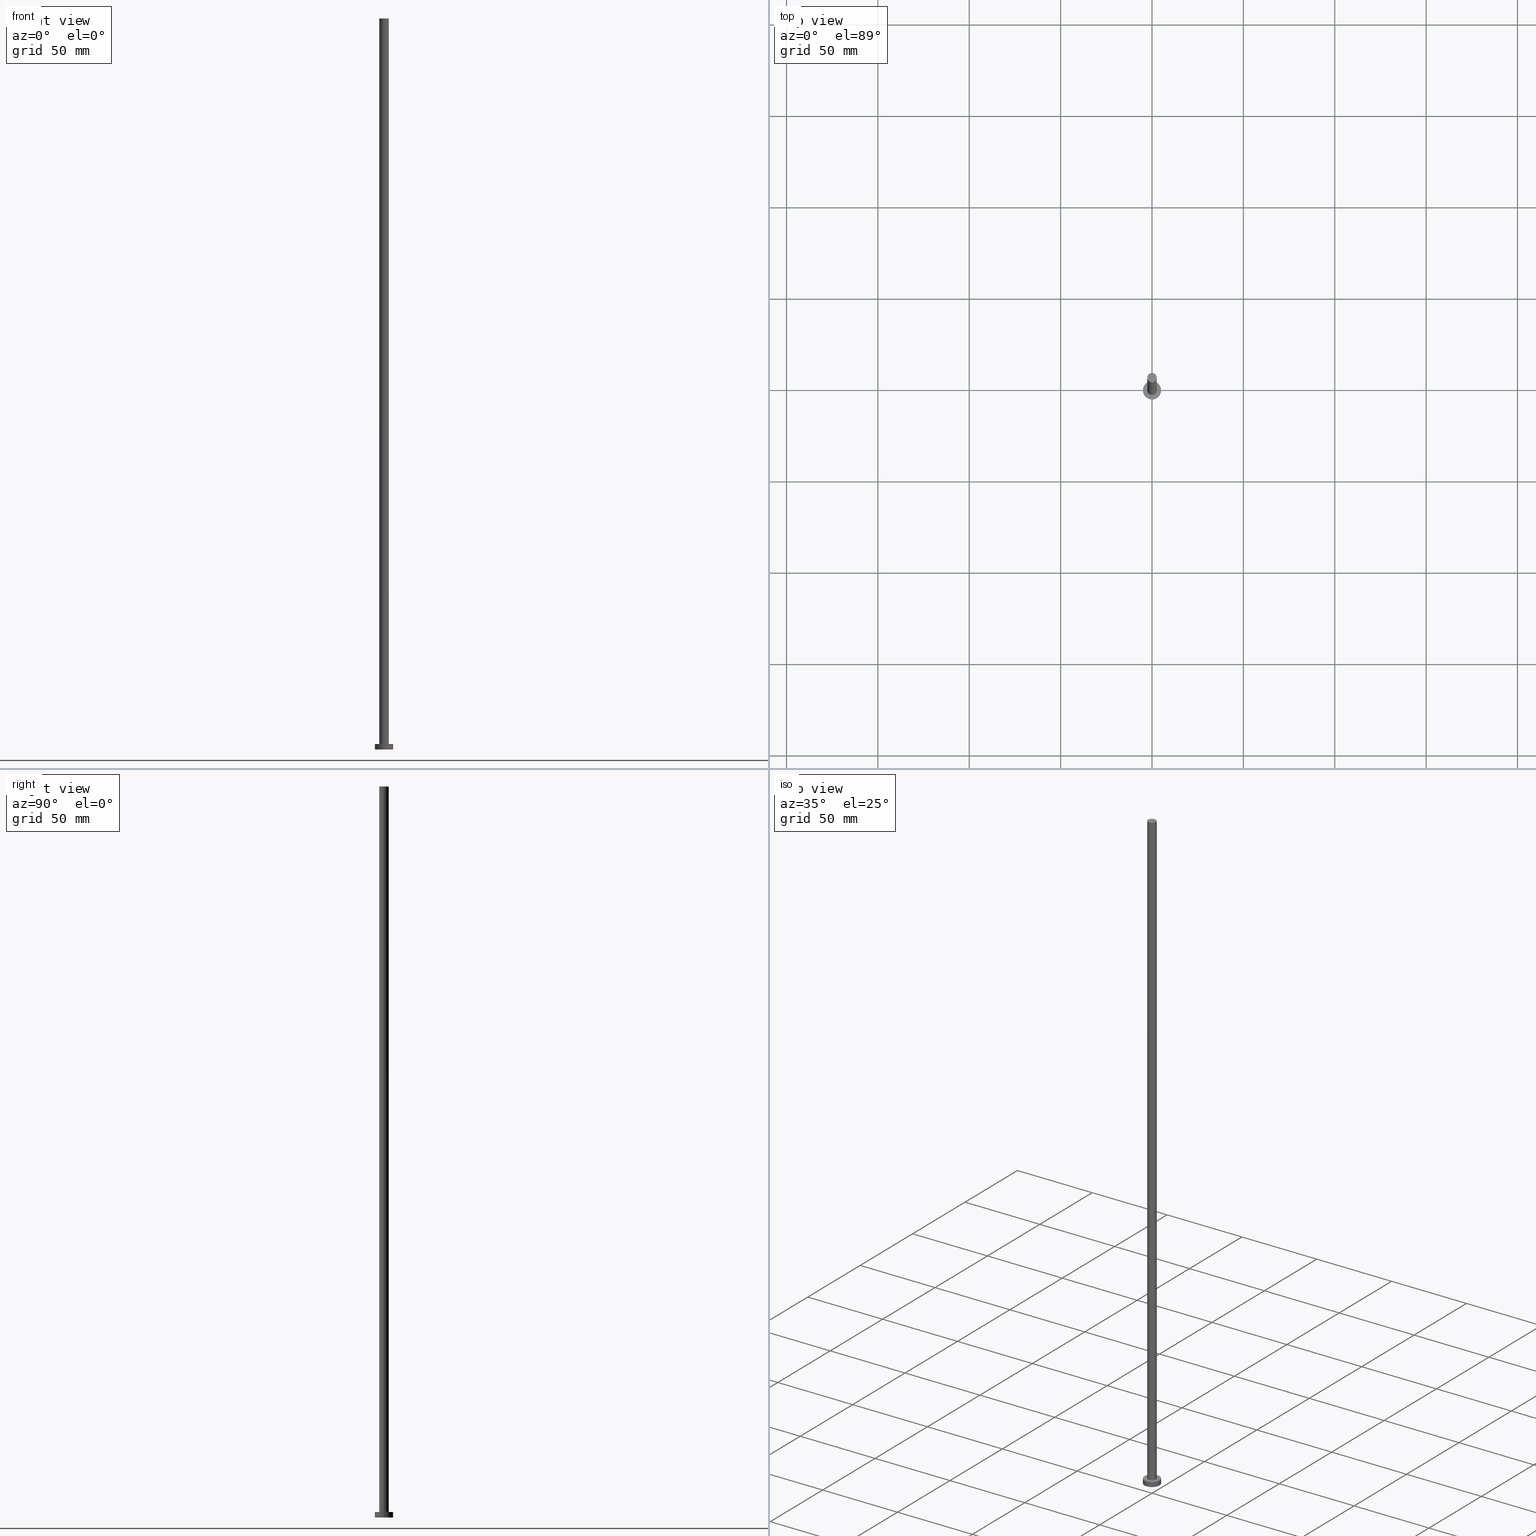
[diagram: canonical four-view strip — front | top / right | iso, engineering-drawing reading convention]
A machine part, canonical four-view strip (front | top / right | iso — engineering-drawing reading convention). The complete STEP part file that produces these views, byte-faithful:
ISO-10303-21;
HEADER;
FILE_DESCRIPTION (( 'STEP AP203' ),
    '1' );
FILE_NAME ('946b.STEP',
    '2023-02-12T12:27:07',
    ( '' ),
    ( '' ),
    'SwSTEP 2.0',
    'SolidWorks 2019',
    '' );
FILE_SCHEMA (( 'CONFIG_CONTROL_DESIGN' ));
ENDSEC;

DATA;
#1 = EDGE_CURVE ( 'NONE', #85, #174, #166, .T. ) ;
#2 = VECTOR ( 'NONE', #37, 1000.000000000000000 ) ;
#3 = CC_DESIGN_APPROVAL ( #71, ( #159 ) ) ;
#4 = LINE ( 'NONE', #101, #2 ) ;
#5 = APPLICATION_PROTOCOL_DEFINITION ( 'international standard', 'config_control_design', 1994, #152 ) ;
#6 = UNCERTAINTY_MEASURE_WITH_UNIT (LENGTH_MEASURE( 1.000000000000000082E-05 ), #123, 'distance_accuracy_value', 'NONE');
#7 = ORIENTED_EDGE ( 'NONE', *, *, #202, .T. ) ;
#8 = DIRECTION ( 'NONE',  ( 1.000000000000000000, 0.000000000000000000, 0.000000000000000000 ) ) ;
#9 = DIRECTION ( 'NONE',  ( -0.000000000000000000, -0.000000000000000000, -1.000000000000000000 ) ) ;
#10 = CARTESIAN_POINT ( 'NONE',  ( 0.000000000000000000, 0.000000000000000000, 400.0000000000000000 ) ) ;
#11 = EDGE_LOOP ( 'NONE', ( #178, #29, #246, #221 ) ) ;
#12 = PLANE ( 'NONE',  #19 ) ;
#13 = CARTESIAN_POINT ( 'NONE',  ( -2.600000000000000089, 0.000000000000000000, 400.0000000000000000 ) ) ;
#14 = FACE_OUTER_BOUND ( 'NONE', #209, .T. ) ;
#15 = LOCAL_TIME ( 13, 27, 7.000000000000000000, #203 ) ;
#16 = LOCAL_TIME ( 13, 27, 7.000000000000000000, #26 ) ;
#17 = CYLINDRICAL_SURFACE ( 'NONE', #238, 5.000000000000000000 ) ;
#18 = AXIS2_PLACEMENT_3D ( 'NONE', #237, #126, #216 ) ;
#19 = AXIS2_PLACEMENT_3D ( 'NONE', #148, #232, #70 ) ;
#20 =( NAMED_UNIT ( * ) PLANE_ANGLE_UNIT ( ) SI_UNIT ( $, .RADIAN. ) );
#21 = ORIENTED_EDGE ( 'NONE', *, *, #226, .F. ) ;
#22 = DATE_AND_TIME ( #32, #78 ) ;
#23 = DIRECTION ( 'NONE',  ( 0.000000000000000000, 0.000000000000000000, 1.000000000000000000 ) ) ;
#24 = VERTEX_POINT ( 'NONE', #255 ) ;
#25 = CARTESIAN_POINT ( 'NONE',  ( 0.000000000000000000, 0.000000000000000000, 400.0000000000000000 ) ) ;
#26 = COORDINATED_UNIVERSAL_TIME_OFFSET ( 1, 0, .AHEAD. ) ;
#27 = PLANE ( 'NONE',  #18 ) ;
#28 = AXIS2_PLACEMENT_3D ( 'NONE', #229, #250, #30 ) ;
#29 = ORIENTED_EDGE ( 'NONE', *, *, #253, .F. ) ;
#30 = DIRECTION ( 'NONE',  ( 1.000000000000000000, 0.000000000000000000, 0.000000000000000000 ) ) ;
#31 = EDGE_LOOP ( 'NONE', ( #211, #49, #245, #68 ) ) ;
#32 = CALENDAR_DATE ( 2023, 12, 2 ) ;
#33 = DIRECTION ( 'NONE',  ( -0.000000000000000000, -0.000000000000000000, -1.000000000000000000 ) ) ;
#34 = CC_DESIGN_DATE_AND_TIME_ASSIGNMENT ( #165, #145, ( #147 ) ) ;
#35 = ADVANCED_FACE ( 'NONE', ( #113, #67 ), #12, .T. ) ;
#36 = MECHANICAL_CONTEXT ( 'NONE', #91, 'mechanical' ) ;
#37 = DIRECTION ( 'NONE',  ( -0.000000000000000000, -0.000000000000000000, -1.000000000000000000 ) ) ;
#38 = CLOSED_SHELL ( 'NONE', ( #109, #181, #204, #35, #90, #58, #160 ) ) ;
#39 = APPROVAL_ROLE ( '' ) ;
#40 = EDGE_CURVE ( 'NONE', #122, #108, #146, .T. ) ;
#41 = VECTOR ( 'NONE', #247, 1000.000000000000000 ) ;
#42 = APPROVAL_DATE_TIME ( #134, #71 ) ;
#43 = CARTESIAN_POINT ( 'NONE',  ( 0.000000000000000000, 0.000000000000000000, 3.000000000000000000 ) ) ;
#44 = DIRECTION ( 'NONE',  ( 0.000000000000000000, 0.000000000000000000, 1.000000000000000000 ) ) ;
#45 = DIRECTION ( 'NONE',  ( 1.000000000000000000, 0.000000000000000000, 0.000000000000000000 ) ) ;
#46 = ORIENTED_EDGE ( 'NONE', *, *, #158, .F. ) ;
#47 = DIRECTION ( 'NONE',  ( 0.000000000000000000, 0.000000000000000000, 1.000000000000000000 ) ) ;
#48 = PRODUCT_DEFINITION_FORMATION_WITH_SPECIFIED_SOURCE ( 'LIBOVOLN�', '', #96, .NOT_KNOWN. ) ;
#49 = ORIENTED_EDGE ( 'NONE', *, *, #103, .T. ) ;
#50 = FACE_OUTER_BOUND ( 'NONE', #228, .T. ) ;
#51 = APPROVAL ( #59, 'NEUR�EN�' ) ;
#52 = EDGE_CURVE ( 'NONE', #127, #112, #116, .T. ) ;
#53 = CIRCLE ( 'NONE', #137, 2.600000000000000089 ) ;
#54 = PERSON_AND_ORGANIZATION ( #206, #218 ) ;
#55 = AXIS2_PLACEMENT_3D ( 'NONE', #207, #73, #76 ) ;
#56 = PRODUCT_DEFINITION_SHAPE ( 'NONE', 'NONE',  #147 ) ;
#57 = CALENDAR_DATE ( 2023, 12, 2 ) ;
#58 = ADVANCED_FACE ( 'NONE', ( #135 ), #157, .T. ) ;
#59 = APPROVAL_STATUS ( 'not_yet_approved' ) ;
#60 = ORIENTED_EDGE ( 'NONE', *, *, #1, .F. ) ;
#61 = CIRCLE ( 'NONE', #28, 5.000000000000000000 ) ;
#62 = DATE_TIME_ROLE ( 'classification_date' ) ;
#63 = CARTESIAN_POINT ( 'NONE',  ( -2.600000000000000089, 0.000000000000000000, 3.000000000000000000 ) ) ;
#64 = ORIENTED_EDGE ( 'NONE', *, *, #1, .T. ) ;
#65 = PERSON_AND_ORGANIZATION ( #206, #218 ) ;
#66 = DIRECTION ( 'NONE',  ( 1.000000000000000000, 0.000000000000000000, 0.000000000000000000 ) ) ;
#67 = FACE_OUTER_BOUND ( 'NONE', #133, .T. ) ;
#68 = ORIENTED_EDGE ( 'NONE', *, *, #198, .F. ) ;
#69 = SECURITY_CLASSIFICATION_LEVEL ( 'unclassified' ) ;
#70 = DIRECTION ( 'NONE',  ( 1.000000000000000000, 0.000000000000000000, -0.000000000000000000 ) ) ;
#71 = APPROVAL ( #187, 'NEUR�EN�' ) ;
#72 = CARTESIAN_POINT ( 'NONE',  ( -5.000000000000000000, 0.000000000000000000, 3.000000000000000000 ) ) ;
#73 = DIRECTION ( 'NONE',  ( 0.000000000000000000, 0.000000000000000000, 1.000000000000000000 ) ) ;
#74 = CC_DESIGN_PERSON_AND_ORGANIZATION_ASSIGNMENT ( #121, #117, ( #147 ) ) ;
#75 =( NAMED_UNIT ( * ) SI_UNIT ( $, .STERADIAN. ) SOLID_ANGLE_UNIT ( ) );
#76 = DIRECTION ( 'NONE',  ( 1.000000000000000000, 0.000000000000000000, 0.000000000000000000 ) ) ;
#77 = DATE_AND_TIME ( #183, #15 ) ;
#78 = LOCAL_TIME ( 13, 27, 7.000000000000000000, #99 ) ;
#79 = APPROVAL_ROLE ( '' ) ;
#80 = ORIENTED_EDGE ( 'NONE', *, *, #158, .T. ) ;
#81 = DIRECTION ( 'NONE',  ( -0.000000000000000000, -0.000000000000000000, -1.000000000000000000 ) ) ;
#82 = ORIENTED_EDGE ( 'NONE', *, *, #40, .F. ) ;
#83 = CARTESIAN_POINT ( 'NONE',  ( 5.000000000000000000, 6.123233995736766282E-16, 0.000000000000000000 ) ) ;
#84 = DIRECTION ( 'NONE',  ( 1.000000000000000000, 0.000000000000000000, 0.000000000000000000 ) ) ;
#85 = VERTEX_POINT ( 'NONE', #222 ) ;
#86 = FACE_OUTER_BOUND ( 'NONE', #31, .T. ) ;
#87 = CARTESIAN_POINT ( 'NONE',  ( 0.000000000000000000, 0.000000000000000000, 400.0000000000000000 ) ) ;
#88 = APPROVAL_PERSON_ORGANIZATION ( #54, #51, #39 ) ;
#89 = DIRECTION ( 'NONE',  ( 1.000000000000000000, 0.000000000000000000, 0.000000000000000000 ) ) ;
#90 = ADVANCED_FACE ( 'NONE', ( #14 ), #27, .F. ) ;
#91 = APPLICATION_CONTEXT ( 'configuration controlled 3d designs of mechanical parts and assemblies' ) ;
#92 = CIRCLE ( 'NONE', #118, 2.600000000000000089 ) ;
#93 = CARTESIAN_POINT ( 'NONE',  ( 2.600000000000000089, 3.184081677783118191E-16, 400.0000000000000000 ) ) ;
#94 = DESIGN_CONTEXT ( 'detailed design', #152, 'design' ) ;
#95 = CC_DESIGN_DATE_AND_TIME_ASSIGNMENT ( #22, #62, ( #159 ) ) ;
#96 = PRODUCT ( '946b', '946b', '', ( #36 ) ) ;
#97 = VECTOR ( 'NONE', #81, 1000.000000000000000 ) ;
#98 = EDGE_LOOP ( 'NONE', ( #254, #191, #104, #156 ) ) ;
#99 = COORDINATED_UNIVERSAL_TIME_OFFSET ( 1, 0, .AHEAD. ) ;
#100 = DIRECTION ( 'NONE',  ( -1.000000000000000000, 0.000000000000000000, 0.000000000000000000 ) ) ;
#101 = CARTESIAN_POINT ( 'NONE',  ( -2.600000000000000089, 0.000000000000000000, 400.0000000000000000 ) ) ;
#102 = CARTESIAN_POINT ( 'NONE',  ( 0.000000000000000000, 0.000000000000000000, 3.000000000000000000 ) ) ;
#103 = EDGE_CURVE ( 'NONE', #186, #127, #252, .T. ) ;
#104 = ORIENTED_EDGE ( 'NONE', *, *, #198, .T. ) ;
#105 = LINE ( 'NONE', #93, #130 ) ;
#106 = AXIS2_PLACEMENT_3D ( 'NONE', #173, #47, #84 ) ;
#107 = DIRECTION ( 'NONE',  ( 0.000000000000000000, 0.000000000000000000, 1.000000000000000000 ) ) ;
#108 = VERTEX_POINT ( 'NONE', #155 ) ;
#109 = ADVANCED_FACE ( 'NONE', ( #50 ), #190, .T. ) ;
#110 = ADVANCED_BREP_SHAPE_REPRESENTATION ( '946b', ( #233, #55 ), #192 ) ;
#111 = PLANE ( 'NONE',  #242 ) ;
#112 = VERTEX_POINT ( 'NONE', #235 ) ;
#113 = FACE_BOUND ( 'NONE', #230, .T. ) ;
#114 = AXIS2_PLACEMENT_3D ( 'NONE', #179, #196, #193 ) ;
#115 = LOCAL_TIME ( 13, 27, 7.000000000000000000, #240 ) ;
#116 = CIRCLE ( 'NONE', #106, 5.000000000000000000 ) ;
#117 = PERSON_AND_ORGANIZATION_ROLE ( 'creator' ) ;
#118 = AXIS2_PLACEMENT_3D ( 'NONE', #25, #44, #89 ) ;
#119 = PERSON_AND_ORGANIZATION ( #206, #218 ) ;
#120 = DATE_AND_TIME ( #57, #219 ) ;
#121 = PERSON_AND_ORGANIZATION ( #206, #218 ) ;
#122 = VERTEX_POINT ( 'NONE', #63 ) ;
#123 =( LENGTH_UNIT ( ) NAMED_UNIT ( * ) SI_UNIT ( .MILLI., .METRE. ) );
#124 = CC_DESIGN_PERSON_AND_ORGANIZATION_ASSIGNMENT ( #119, #225, ( #96 ) ) ;
#125 = FACE_OUTER_BOUND ( 'NONE', #214, .T. ) ;
#126 = DIRECTION ( 'NONE',  ( 0.000000000000000000, 0.000000000000000000, 1.000000000000000000 ) ) ;
#127 = VERTEX_POINT ( 'NONE', #83 ) ;
#128 = EDGE_CURVE ( 'NONE', #112, #127, #61, .T. ) ;
#129 = LINE ( 'NONE', #72, #41 ) ;
#130 = VECTOR ( 'NONE', #234, 1000.000000000000000 ) ;
#131 = DIRECTION ( 'NONE',  ( 0.000000000000000000, 0.000000000000000000, 1.000000000000000000 ) ) ;
#132 = CC_DESIGN_PERSON_AND_ORGANIZATION_ASSIGNMENT ( #65, #210, ( #159 ) ) ;
#133 = EDGE_LOOP ( 'NONE', ( #7, #195 ) ) ;
#134 = DATE_AND_TIME ( #236, #16 ) ;
#135 = FACE_OUTER_BOUND ( 'NONE', #11, .T. ) ;
#136 = AXIS2_PLACEMENT_3D ( 'NONE', #153, #140, #182 ) ;
#137 = AXIS2_PLACEMENT_3D ( 'NONE', #43, #220, #66 ) ;
#138 = APPROVAL_PERSON_ORGANIZATION ( #248, #71, #251 ) ;
#139 = CC_DESIGN_PERSON_AND_ORGANIZATION_ASSIGNMENT ( #244, #172, ( #48 ) ) ;
#140 = DIRECTION ( 'NONE',  ( -0.000000000000000000, -0.000000000000000000, -1.000000000000000000 ) ) ;
#141 = COORDINATED_UNIVERSAL_TIME_OFFSET ( 1, 0, .AHEAD. ) ;
#142 = APPROVAL_DATE_TIME ( #77, #51 ) ;
#143 = CC_DESIGN_APPROVAL ( #51, ( #147 ) ) ;
#144 = PERSON_AND_ORGANIZATION_ROLE ( 'creator' ) ;
#145 = DATE_TIME_ROLE ( 'creation_date' ) ;
#146 = CIRCLE ( 'NONE', #114, 2.600000000000000089 ) ;
#147 = PRODUCT_DEFINITION ( 'NEZN�M�', '', #48, #94 ) ;
#148 = CARTESIAN_POINT ( 'NONE',  ( 0.000000000000000000, 0.000000000000000000, 3.000000000000000000 ) ) ;
#149 = ORIENTED_EDGE ( 'NONE', *, *, #184, .T. ) ;
#150 = DIRECTION ( 'NONE',  ( -1.000000000000000000, 0.000000000000000000, 0.000000000000000000 ) ) ;
#151 = DIRECTION ( 'NONE',  ( 1.000000000000000000, 0.000000000000000000, -0.000000000000000000 ) ) ;
#152 = APPLICATION_CONTEXT ( 'configuration controlled 3d designs of mechanical parts and assemblies' ) ;
#153 = CARTESIAN_POINT ( 'NONE',  ( 0.000000000000000000, 0.000000000000000000, 3.000000000000000000 ) ) ;
#154 = APPROVAL ( #168, 'NEUR�EN�' ) ;
#155 = CARTESIAN_POINT ( 'NONE',  ( 2.600000000000000089, 3.184081677783118191E-16, 3.000000000000000000 ) ) ;
#156 = ORIENTED_EDGE ( 'NONE', *, *, #128, .T. ) ;
#157 = CYLINDRICAL_SURFACE ( 'NONE', #185, 2.600000000000000089 ) ;
#158 = EDGE_CURVE ( 'NONE', #108, #122, #53, .T. ) ;
#159 = SECURITY_CLASSIFICATION ( '', '', #69 ) ;
#160 = ADVANCED_FACE ( 'NONE', ( #125 ), #111, .T. ) ;
#161 = CC_DESIGN_PERSON_AND_ORGANIZATION_ASSIGNMENT ( #205, #144, ( #48 ) ) ;
#162 = AXIS2_PLACEMENT_3D ( 'NONE', #102, #131, #45 ) ;
#163 = CC_DESIGN_SECURITY_CLASSIFICATION ( #159, ( #48 ) ) ;
#164 = FACE_OUTER_BOUND ( 'NONE', #98, .T. ) ;
#165 = DATE_AND_TIME ( #167, #115 ) ;
#166 = CIRCLE ( 'NONE', #199, 2.600000000000000089 ) ;
#167 = CALENDAR_DATE ( 2023, 12, 2 ) ;
#168 = APPROVAL_STATUS ( 'not_yet_approved' ) ;
#169 = EDGE_CURVE ( 'NONE', #186, #24, #176, .T. ) ;
#170 = ORIENTED_EDGE ( 'NONE', *, *, #253, .T. ) ;
#171 = ORIENTED_EDGE ( 'NONE', *, *, #52, .F. ) ;
#172 = PERSON_AND_ORGANIZATION_ROLE ( 'design_supplier' ) ;
#173 = CARTESIAN_POINT ( 'NONE',  ( 0.000000000000000000, 0.000000000000000000, 0.000000000000000000 ) ) ;
#174 = VERTEX_POINT ( 'NONE', #13 ) ;
#175 = CARTESIAN_POINT ( 'NONE',  ( 0.000000000000000000, 0.000000000000000000, 3.000000000000000000 ) ) ;
#176 = CIRCLE ( 'NONE', #162, 5.000000000000000000 ) ;
#177 = CARTESIAN_POINT ( 'NONE',  ( 0.000000000000000000, 0.000000000000000000, 400.0000000000000000 ) ) ;
#178 = ORIENTED_EDGE ( 'NONE', *, *, #184, .F. ) ;
#179 = CARTESIAN_POINT ( 'NONE',  ( 0.000000000000000000, 0.000000000000000000, 3.000000000000000000 ) ) ;
#180 = AXIS2_PLACEMENT_3D ( 'NONE', #177, #9, #249 ) ;
#181 = ADVANCED_FACE ( 'NONE', ( #86 ), #201, .T. ) ;
#182 = DIRECTION ( 'NONE',  ( -1.000000000000000000, 0.000000000000000000, 0.000000000000000000 ) ) ;
#183 = CALENDAR_DATE ( 2023, 12, 2 ) ;
#184 = EDGE_CURVE ( 'NONE', #85, #108, #105, .T. ) ;
#185 = AXIS2_PLACEMENT_3D ( 'NONE', #10, #33, #100 ) ;
#186 = VERTEX_POINT ( 'NONE', #212 ) ;
#187 = APPROVAL_STATUS ( 'not_yet_approved' ) ;
#188 = DIRECTION ( 'NONE',  ( 1.000000000000000000, 0.000000000000000000, 0.000000000000000000 ) ) ;
#189 = CARTESIAN_POINT ( 'NONE',  ( 0.000000000000000000, 0.000000000000000000, 3.000000000000000000 ) ) ;
#190 = CYLINDRICAL_SURFACE ( 'NONE', #180, 2.600000000000000089 ) ;
#191 = ORIENTED_EDGE ( 'NONE', *, *, #202, .F. ) ;
#192 =( GEOMETRIC_REPRESENTATION_CONTEXT ( 3 ) GLOBAL_UNCERTAINTY_ASSIGNED_CONTEXT ( ( #6 ) ) GLOBAL_UNIT_ASSIGNED_CONTEXT ( ( #123, #20, #75 ) ) REPRESENTATION_CONTEXT ( 'NONE', 'WORKASPACE' ) );
#193 = DIRECTION ( 'NONE',  ( 1.000000000000000000, 0.000000000000000000, 0.000000000000000000 ) ) ;
#194 = CARTESIAN_POINT ( 'NONE',  ( 5.000000000000000000, 6.123233995736766282E-16, 3.000000000000000000 ) ) ;
#195 = ORIENTED_EDGE ( 'NONE', *, *, #169, .T. ) ;
#196 = DIRECTION ( 'NONE',  ( 0.000000000000000000, 0.000000000000000000, 1.000000000000000000 ) ) ;
#197 = AXIS2_PLACEMENT_3D ( 'NONE', #189, #215, #8 ) ;
#198 = EDGE_CURVE ( 'NONE', #24, #112, #129, .T. ) ;
#199 = AXIS2_PLACEMENT_3D ( 'NONE', #87, #107, #188 ) ;
#200 = APPROVAL_DATE_TIME ( #120, #154 ) ;
#201 = CYLINDRICAL_SURFACE ( 'NONE', #136, 5.000000000000000000 ) ;
#202 = EDGE_CURVE ( 'NONE', #24, #186, #223, .T. ) ;
#203 = COORDINATED_UNIVERSAL_TIME_OFFSET ( 1, 0, .AHEAD. ) ;
#204 = ADVANCED_FACE ( 'NONE', ( #164 ), #17, .T. ) ;
#205 = PERSON_AND_ORGANIZATION ( #206, #218 ) ;
#206 = PERSON ( 'NEUR�EN�', 'NEUR�EN�', 'NEUR�EN�', ('NEUR�EN�'), ('NEUR�EN�'), ('NEUR�EN�') ) ;
#207 = CARTESIAN_POINT ( 'NONE',  ( 0.000000000000000000, 0.000000000000000000, 0.000000000000000000 ) ) ;
#208 = CC_DESIGN_APPROVAL ( #154, ( #48 ) ) ;
#209 = EDGE_LOOP ( 'NONE', ( #217, #171 ) ) ;
#210 = PERSON_AND_ORGANIZATION_ROLE ( 'classification_officer' ) ;
#211 = ORIENTED_EDGE ( 'NONE', *, *, #169, .F. ) ;
#212 = CARTESIAN_POINT ( 'NONE',  ( 5.000000000000000000, 6.123233995736766282E-16, 3.000000000000000000 ) ) ;
#213 = CARTESIAN_POINT ( 'NONE',  ( 0.000000000000000000, 0.000000000000000000, 400.0000000000000000 ) ) ;
#214 = EDGE_LOOP ( 'NONE', ( #170, #64 ) ) ;
#215 = DIRECTION ( 'NONE',  ( 0.000000000000000000, 0.000000000000000000, 1.000000000000000000 ) ) ;
#216 = DIRECTION ( 'NONE',  ( 1.000000000000000000, 0.000000000000000000, -0.000000000000000000 ) ) ;
#217 = ORIENTED_EDGE ( 'NONE', *, *, #128, .F. ) ;
#218 = ORGANIZATION ( 'NEUR�EN�', 'NEUR�EN�', '' ) ;
#219 = LOCAL_TIME ( 13, 27, 7.000000000000000000, #141 ) ;
#220 = DIRECTION ( 'NONE',  ( 0.000000000000000000, 0.000000000000000000, 1.000000000000000000 ) ) ;
#221 = ORIENTED_EDGE ( 'NONE', *, *, #40, .T. ) ;
#222 = CARTESIAN_POINT ( 'NONE',  ( 2.600000000000000089, 3.184081677783118191E-16, 400.0000000000000000 ) ) ;
#223 = CIRCLE ( 'NONE', #197, 5.000000000000000000 ) ;
#224 = DIRECTION ( 'NONE',  ( -0.000000000000000000, -0.000000000000000000, -1.000000000000000000 ) ) ;
#225 = PERSON_AND_ORGANIZATION_ROLE ( 'design_owner' ) ;
#226 = EDGE_CURVE ( 'NONE', #174, #122, #4, .T. ) ;
#227 = PRODUCT_RELATED_PRODUCT_CATEGORY ( 'detail', '', ( #96 ) ) ;
#228 = EDGE_LOOP ( 'NONE', ( #60, #149, #80, #21 ) ) ;
#229 = CARTESIAN_POINT ( 'NONE',  ( 0.000000000000000000, 0.000000000000000000, 0.000000000000000000 ) ) ;
#230 = EDGE_LOOP ( 'NONE', ( #82, #46 ) ) ;
#231 = SHAPE_DEFINITION_REPRESENTATION ( #56, #110 ) ;
#232 = DIRECTION ( 'NONE',  ( 0.000000000000000000, 0.000000000000000000, 1.000000000000000000 ) ) ;
#233 = MANIFOLD_SOLID_BREP ( 'P�idat vysunut�m3', #38 ) ;
#234 = DIRECTION ( 'NONE',  ( -0.000000000000000000, -0.000000000000000000, -1.000000000000000000 ) ) ;
#235 = CARTESIAN_POINT ( 'NONE',  ( -5.000000000000000000, 0.000000000000000000, 0.000000000000000000 ) ) ;
#236 = CALENDAR_DATE ( 2023, 12, 2 ) ;
#237 = CARTESIAN_POINT ( 'NONE',  ( 0.000000000000000000, 0.000000000000000000, 0.000000000000000000 ) ) ;
#238 = AXIS2_PLACEMENT_3D ( 'NONE', #175, #224, #150 ) ;
#239 = APPROVAL_PERSON_ORGANIZATION ( #243, #154, #79 ) ;
#240 = COORDINATED_UNIVERSAL_TIME_OFFSET ( 1, 0, .AHEAD. ) ;
#241 = APPLICATION_PROTOCOL_DEFINITION ( 'international standard', 'config_control_design', 1994, #91 ) ;
#242 = AXIS2_PLACEMENT_3D ( 'NONE', #213, #23, #151 ) ;
#243 = PERSON_AND_ORGANIZATION ( #206, #218 ) ;
#244 = PERSON_AND_ORGANIZATION ( #206, #218 ) ;
#245 = ORIENTED_EDGE ( 'NONE', *, *, #52, .T. ) ;
#246 = ORIENTED_EDGE ( 'NONE', *, *, #226, .T. ) ;
#247 = DIRECTION ( 'NONE',  ( -0.000000000000000000, -0.000000000000000000, -1.000000000000000000 ) ) ;
#248 = PERSON_AND_ORGANIZATION ( #206, #218 ) ;
#249 = DIRECTION ( 'NONE',  ( -1.000000000000000000, 0.000000000000000000, 0.000000000000000000 ) ) ;
#250 = DIRECTION ( 'NONE',  ( 0.000000000000000000, 0.000000000000000000, 1.000000000000000000 ) ) ;
#251 = APPROVAL_ROLE ( '' ) ;
#252 = LINE ( 'NONE', #194, #97 ) ;
#253 = EDGE_CURVE ( 'NONE', #174, #85, #92, .T. ) ;
#254 = ORIENTED_EDGE ( 'NONE', *, *, #103, .F. ) ;
#255 = CARTESIAN_POINT ( 'NONE',  ( -5.000000000000000000, 0.000000000000000000, 3.000000000000000000 ) ) ;
ENDSEC;
END-ISO-10303-21;
